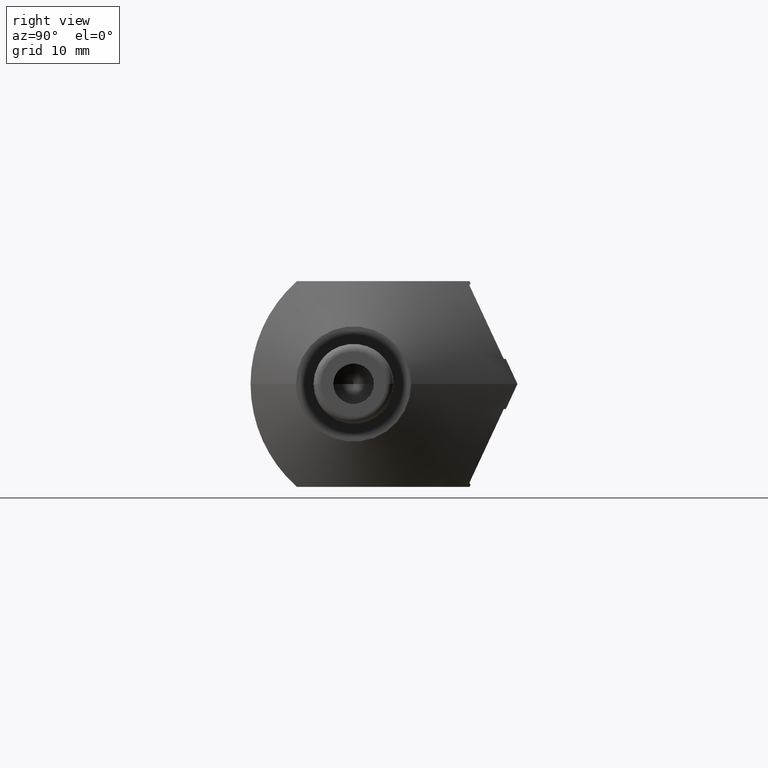
[diagram: clean part render]
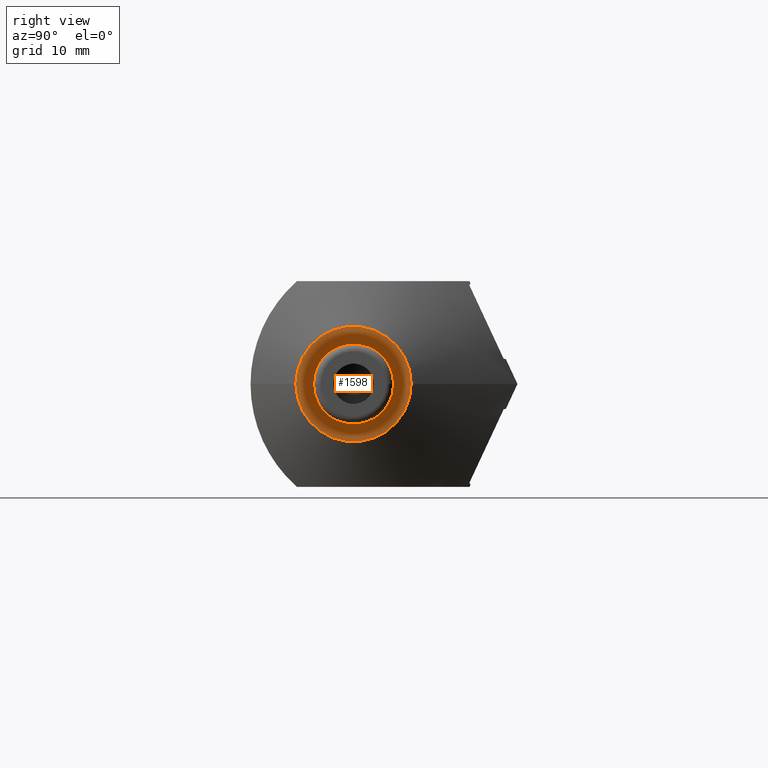
[diagram: same view with one face highlighted and labeled with its STEP entity id]
A machine part, right view. The second image highlights one B-rep face of the part: STEP entity #1598.
In plain terms, the highlighted planar face has unit normal (1, 0, 0).
Its self-contained STEP definition (entity closure, byte-faithful):
#114=CARTESIAN_POINT('',(7.5E-1,-1.87E-1,0.E0));
#115=DIRECTION('',(-1.E0,0.E0,0.E0));
#116=DIRECTION('',(0.E0,1.E0,0.E0));
#117=AXIS2_PLACEMENT_3D('',#114,#115,#116);
#123=CARTESIAN_POINT('',(7.5E-1,-1.87E-1,0.E0));
#124=DIRECTION('',(-1.E0,0.E0,0.E0));
#125=DIRECTION('',(0.E0,-1.E0,0.E0));
#126=AXIS2_PLACEMENT_3D('',#123,#124,#125);
#131=CARTESIAN_POINT('',(7.5E-1,-1.87E-1,0.E0));
#132=DIRECTION('',(-1.E0,0.E0,0.E0));
#133=DIRECTION('',(0.E0,-1.E0,0.E0));
#134=AXIS2_PLACEMENT_3D('',#131,#132,#133);
#139=CARTESIAN_POINT('',(7.5E-1,-1.87E-1,0.E0));
#140=DIRECTION('',(-1.E0,0.E0,0.E0));
#141=DIRECTION('',(0.E0,1.E0,0.E0));
#142=AXIS2_PLACEMENT_3D('',#139,#140,#141);
#1418=CARTESIAN_POINT('',(7.5E-1,1.28E-1,0.E0));
#1419=CARTESIAN_POINT('',(7.5E-1,-5.02E-1,0.E0));
#1420=VERTEX_POINT('',#1418);
#1421=VERTEX_POINT('',#1419);
#1539=CARTESIAN_POINT('',(7.5E-1,-4.06E-1,0.E0));
#1540=CARTESIAN_POINT('',(7.5E-1,3.2E-2,0.E0));
#1541=VERTEX_POINT('',#1539);
#1542=VERTEX_POINT('',#1540);
#1581=CARTESIAN_POINT('',(7.5E-1,0.E0,0.E0));
#1582=DIRECTION('',(1.E0,0.E0,0.E0));
#1583=DIRECTION('',(0.E0,0.E0,-1.E0));
#1584=AXIS2_PLACEMENT_3D('',#1581,#1582,#1583);
#1585=PLANE('',#1584);
#1587=ORIENTED_EDGE('',*,*,#1586,.T.);
#1589=ORIENTED_EDGE('',*,*,#1588,.T.);
#1590=EDGE_LOOP('',(#1587,#1589));
#1591=FACE_OUTER_BOUND('',#1590,.F.);
#1593=ORIENTED_EDGE('',*,*,#1592,.F.);
#1595=ORIENTED_EDGE('',*,*,#1594,.F.);
#1596=EDGE_LOOP('',(#1593,#1595));
#1597=FACE_BOUND('',#1596,.F.);
#1598=ADVANCED_FACE('',(#1591,#1597),#1585,.T.);
#118=CIRCLE('',#117,3.15E-1);
#127=CIRCLE('',#126,3.15E-1);
#135=CIRCLE('',#134,2.19E-1);
#143=CIRCLE('',#142,2.19E-1);
#1586=EDGE_CURVE('',#1420,#1421,#118,.T.);
#1588=EDGE_CURVE('',#1421,#1420,#127,.T.);
#1592=EDGE_CURVE('',#1541,#1542,#135,.T.);
#1594=EDGE_CURVE('',#1542,#1541,#143,.T.);